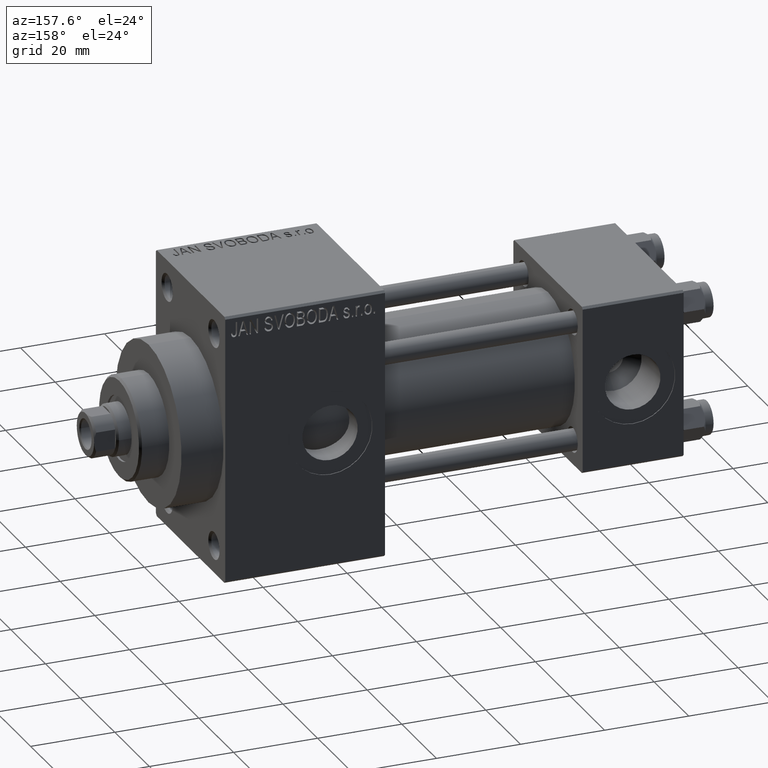
[diagram: clean part render]
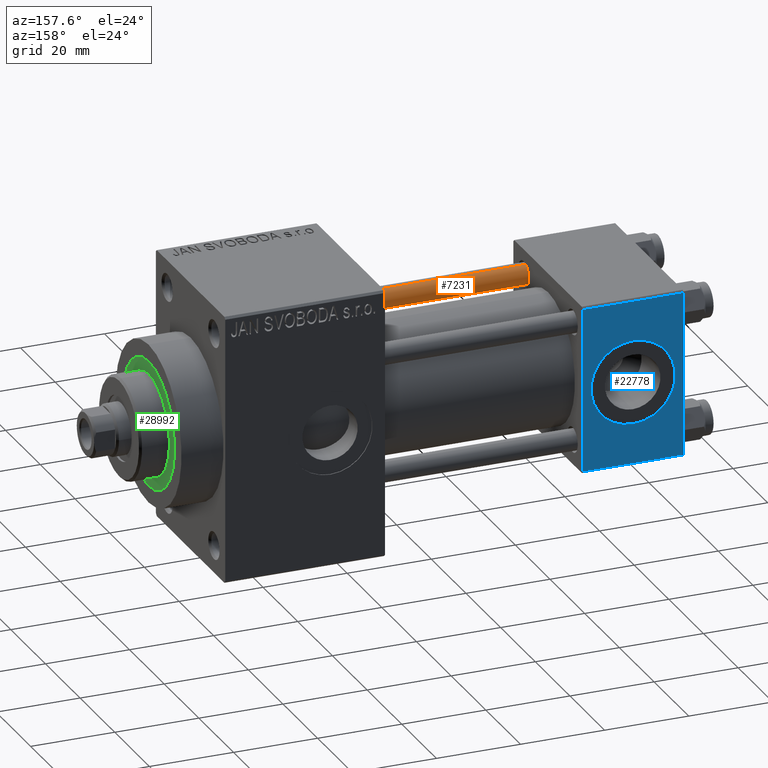
[diagram: same view with three faces highlighted in distinct colors, each labeled with its STEP entity id]
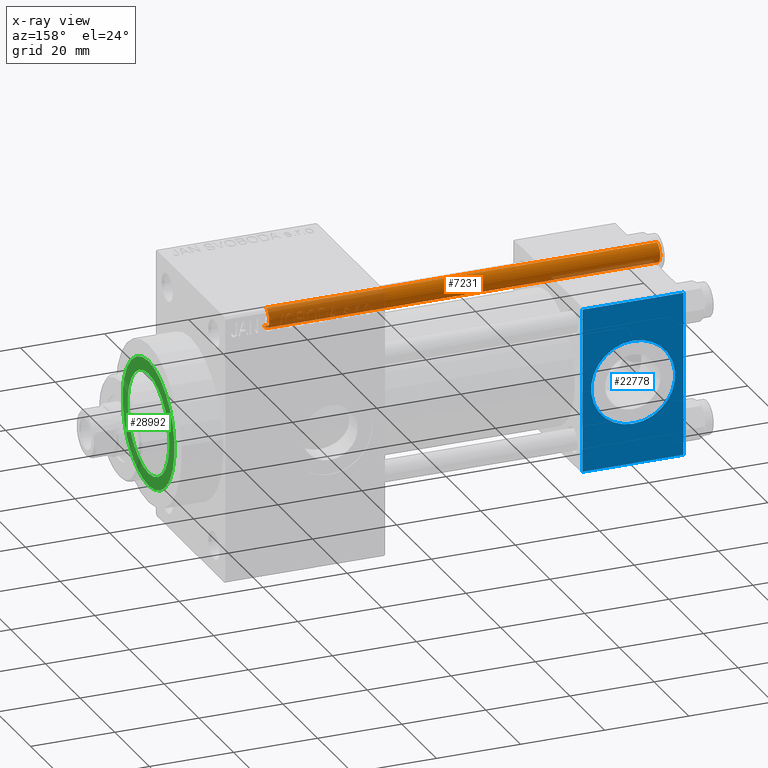
[diagram: x-ray of the same camera — body ghosted, the three highlighted faces saturated]
A machine part, auxiliary view with three faces highlighted in distinct colors.
The next image is the same camera in x-ray (body ghosted, the three faces saturated) — at least one of them is partly hidden behind the body in this view.
Their STEP definitions:

[orange] entity #7231 — the highlighted cylindrical surface (edge-blend (fillet) strip) has radius 2.5 mm, axis along (1, 0, 0).
#2433 = CARTESIAN_POINT ( 'NONE',  ( 2.500000000000000000, 3.061616997868383141E-16, 93.50000000000001421 ) ) ;
#4178 = ORIENTED_EDGE ( 'NONE', *, *, #36421, .T. ) ;
#4945 = CARTESIAN_POINT ( 'NONE',  ( -2.500000000000000000, 0.000000000000000000, 94.00000000000000000 ) ) ;
#5501 = EDGE_LOOP ( 'NONE', ( #19191, #19571, #4178, #46881 ) ) ;
#5672 = CARTESIAN_POINT ( 'NONE',  ( -2.500000000000000000, 0.000000000000000000, 93.50000000000001421 ) ) ;
#6122 = DIRECTION ( 'NONE',  ( 1.000000000000000000, 0.000000000000000000, 0.000000000000000000 ) ) ;
#6596 = CARTESIAN_POINT ( 'NONE',  ( 0.000000000000000000, 0.000000000000000000, 93.50000000000001421 ) ) ;
#6803 = DIRECTION ( 'NONE',  ( -0.000000000000000000, -0.000000000000000000, -1.000000000000000000 ) ) ;
#7231 = ADVANCED_FACE ( 'NONE', ( #17759 ), #32744, .T. ) ;
#9719 = CARTESIAN_POINT ( 'NONE',  ( 2.500000000000000000, 3.061616997868383141E-16, 0.5000000000000004441 ) ) ;
#11636 = EDGE_CURVE ( 'NONE', #37110, #43046, #36962, .T. ) ;
#13719 = DIRECTION ( 'NONE',  ( 1.000000000000000000, 0.000000000000000000, 0.000000000000000000 ) ) ;
#15228 = VERTEX_POINT ( 'NONE', #26004 ) ;
#17661 = VECTOR ( 'NONE', #33990, 1000.000000000000000 ) ;
#17759 = FACE_OUTER_BOUND ( 'NONE', #5501, .T. ) ;
#19191 = ORIENTED_EDGE ( 'NONE', *, *, #31910, .F. ) ;
#19571 = ORIENTED_EDGE ( 'NONE', *, *, #11636, .T. ) ;
#20023 = CIRCLE ( 'NONE', #42804, 2.500000000000000000 ) ;
#20089 = LINE ( 'NONE', #45330, #38166 ) ;
#21568 = DIRECTION ( 'NONE',  ( -1.000000000000000000, 0.000000000000000000, 0.000000000000000000 ) ) ;
#21589 = DIRECTION ( 'NONE',  ( 0.000000000000000000, 0.000000000000000000, -1.000000000000000000 ) ) ;
#22434 = AXIS2_PLACEMENT_3D ( 'NONE', #39177, #6803, #21568 ) ;
#24699 = CARTESIAN_POINT ( 'NONE',  ( 0.000000000000000000, 0.000000000000000000, 0.5000000000000004441 ) ) ;
#25123 = VERTEX_POINT ( 'NONE', #9719 ) ;
#26004 = CARTESIAN_POINT ( 'NONE',  ( -2.500000000000000000, 0.000000000000000000, 0.5000000000000004441 ) ) ;
#26333 = AXIS2_PLACEMENT_3D ( 'NONE', #6596, #21589, #13719 ) ;
#27232 = DIRECTION ( 'NONE',  ( -0.000000000000000000, -0.000000000000000000, -1.000000000000000000 ) ) ;
#31910 = EDGE_CURVE ( 'NONE', #37110, #25123, #20089, .T. ) ;
#32744 = CYLINDRICAL_SURFACE ( 'NONE', #22434, 2.500000000000000000 ) ;
#33823 = EDGE_CURVE ( 'NONE', #15228, #25123, #20023, .T. ) ;
#33990 = DIRECTION ( 'NONE',  ( -0.000000000000000000, -0.000000000000000000, -1.000000000000000000 ) ) ;
#36421 = EDGE_CURVE ( 'NONE', #43046, #15228, #37552, .T. ) ;
#36962 = CIRCLE ( 'NONE', #26333, 2.500000000000000000 ) ;
#37110 = VERTEX_POINT ( 'NONE', #2433 ) ;
#37552 = LINE ( 'NONE', #4945, #17661 ) ;
#38166 = VECTOR ( 'NONE', #27232, 1000.000000000000000 ) ;
#39177 = CARTESIAN_POINT ( 'NONE',  ( 0.000000000000000000, 0.000000000000000000, 94.00000000000000000 ) ) ;
#42804 = AXIS2_PLACEMENT_3D ( 'NONE', #24699, #46127, #6122 ) ;
#43046 = VERTEX_POINT ( 'NONE', #5672 ) ;
#45330 = CARTESIAN_POINT ( 'NONE',  ( 2.500000000000000000, 3.061616997868383141E-16, 94.00000000000000000 ) ) ;
#46127 = DIRECTION ( 'NONE',  ( -0.000000000000000000, -0.000000000000000000, 1.000000000000000000 ) ) ;
#46881 = ORIENTED_EDGE ( 'NONE', *, *, #33823, .T. ) ;

[blue] entity #22778 — the highlighted planar face has unit normal (0, 1, 0).
#699 = EDGE_LOOP ( 'NONE', ( #40546, #15740 ) ) ;
#2335 = AXIS2_PLACEMENT_3D ( 'NONE', #44460, #11831, #19208 ) ;
#3318 = VERTEX_POINT ( 'NONE', #7043 ) ;
#4105 = VERTEX_POINT ( 'NONE', #19949 ) ;
#4736 = DIRECTION ( 'NONE',  ( 0.000000000000000000, 0.000000000000000000, 1.000000000000000000 ) ) ;
#5646 = LINE ( 'NONE', #45181, #45061 ) ;
#7043 = CARTESIAN_POINT ( 'NONE',  ( 12.00000000000000178, 20.00000000000000000, -10.00000000000000000 ) ) ;
#7537 = FACE_OUTER_BOUND ( 'NONE', #24413, .T. ) ;
#8961 = CIRCLE ( 'NONE', #37089, 10.00000000000000000 ) ;
#9086 = LINE ( 'NONE', #34096, #30159 ) ;
#9667 = LINE ( 'NONE', #17041, #28632 ) ;
#11090 = VECTOR ( 'NONE', #26299, 1000.000000000000000 ) ;
#11300 = LINE ( 'NONE', #18682, #11090 ) ;
#11831 = DIRECTION ( 'NONE',  ( 0.000000000000000000, 1.000000000000000000, 0.000000000000000000 ) ) ;
#12886 = DIRECTION ( 'NONE',  ( -1.000000000000000000, 0.000000000000000000, 0.000000000000000000 ) ) ;
#14866 = EDGE_CURVE ( 'NONE', #15635, #45955, #11300, .T. ) ;
#15635 = VERTEX_POINT ( 'NONE', #39229 ) ;
#15740 = ORIENTED_EDGE ( 'NONE', *, *, #18864, .F. ) ;
#16245 = EDGE_CURVE ( 'NONE', #26884, #23269, #9086, .T. ) ;
#16768 = ORIENTED_EDGE ( 'NONE', *, *, #16928, .T. ) ;
#16928 = EDGE_CURVE ( 'NONE', #45955, #26884, #9667, .T. ) ;
#17041 = CARTESIAN_POINT ( 'NONE',  ( 24.00000000000000000, 20.00000000000000000, 20.00000000000000000 ) ) ;
#18682 = CARTESIAN_POINT ( 'NONE',  ( 24.00000000000000000, 20.00000000000000000, 19.49999999999999289 ) ) ;
#18864 = EDGE_CURVE ( 'NONE', #3318, #4105, #8961, .T. ) ;
#19208 = DIRECTION ( 'NONE',  ( 0.000000000000000000, 0.000000000000000000, 1.000000000000000000 ) ) ;
#19727 = DIRECTION ( 'NONE',  ( 0.000000000000000000, 1.000000000000000000, 0.000000000000000000 ) ) ;
#19949 = CARTESIAN_POINT ( 'NONE',  ( 12.00000000000000000, 20.00000000000000000, 10.00000000000000000 ) ) ;
#20414 = DIRECTION ( 'NONE',  ( 0.000000000000000000, 0.000000000000000000, -1.000000000000000000 ) ) ;
#21359 = PLANE ( 'NONE',  #28867 ) ;
#22631 = CARTESIAN_POINT ( 'NONE',  ( 24.00000000000000000, 20.00000000000000000, -19.50000000000002132 ) ) ;
#22778 = ADVANCED_FACE ( 'NONE', ( #39679, #7537 ), #21359, .T. ) ;
#23269 = VERTEX_POINT ( 'NONE', #31952 ) ;
#23303 = CARTESIAN_POINT ( 'NONE',  ( 12.00000000000000000, 20.00000000000000000, 0.000000000000000000 ) ) ;
#24413 = EDGE_LOOP ( 'NONE', ( #16768, #26020, #44591, #28804 ) ) ;
#25232 = EDGE_CURVE ( 'NONE', #4105, #3318, #25879, .T. ) ;
#25879 = CIRCLE ( 'NONE', #2335, 10.00000000000000000 ) ;
#26020 = ORIENTED_EDGE ( 'NONE', *, *, #16245, .T. ) ;
#26299 = DIRECTION ( 'NONE',  ( 1.000000000000000000, 0.000000000000000000, 0.000000000000000000 ) ) ;
#26884 = VERTEX_POINT ( 'NONE', #22631 ) ;
#28632 = VECTOR ( 'NONE', #46322, 1000.000000000000000 ) ;
#28804 = ORIENTED_EDGE ( 'NONE', *, *, #14866, .T. ) ;
#28867 = AXIS2_PLACEMENT_3D ( 'NONE', #36119, #35879, #35640 ) ;
#30159 = VECTOR ( 'NONE', #12886, 1000.000000000000000 ) ;
#31952 = CARTESIAN_POINT ( 'NONE',  ( 0.000000000000000000, 20.00000000000000000, -19.50000000000002132 ) ) ;
#34096 = CARTESIAN_POINT ( 'NONE',  ( 24.00000000000000000, 20.00000000000000000, -19.50000000000002132 ) ) ;
#35640 = DIRECTION ( 'NONE',  ( 0.000000000000000000, -0.000000000000000000, 1.000000000000000000 ) ) ;
#35879 = DIRECTION ( 'NONE',  ( -0.000000000000000000, 1.000000000000000000, 0.000000000000000000 ) ) ;
#36119 = CARTESIAN_POINT ( 'NONE',  ( 24.00000000000000000, 20.00000000000000000, 20.00000000000000000 ) ) ;
#37089 = AXIS2_PLACEMENT_3D ( 'NONE', #23303, #19727, #4736 ) ;
#37349 = EDGE_CURVE ( 'NONE', #15635, #23269, #5646, .T. ) ;
#39229 = CARTESIAN_POINT ( 'NONE',  ( 0.000000000000000000, 20.00000000000000000, 19.49999999999999289 ) ) ;
#39679 = FACE_BOUND ( 'NONE', #699, .T. ) ;
#40546 = ORIENTED_EDGE ( 'NONE', *, *, #25232, .F. ) ;
#42409 = CARTESIAN_POINT ( 'NONE',  ( 24.00000000000000000, 20.00000000000000000, 19.49999999999999289 ) ) ;
#44460 = CARTESIAN_POINT ( 'NONE',  ( 12.00000000000000000, 20.00000000000000000, 0.000000000000000000 ) ) ;
#44591 = ORIENTED_EDGE ( 'NONE', *, *, #37349, .F. ) ;
#45061 = VECTOR ( 'NONE', #20414, 1000.000000000000000 ) ;
#45181 = CARTESIAN_POINT ( 'NONE',  ( 0.000000000000000000, 20.00000000000000000, 20.00000000000000000 ) ) ;
#45955 = VERTEX_POINT ( 'NONE', #42409 ) ;
#46322 = DIRECTION ( 'NONE',  ( 0.000000000000000000, 0.000000000000000000, -1.000000000000000000 ) ) ;

[green] entity #28992 — the highlighted planar face has unit normal (1, -0, -0).
#2613 = CARTESIAN_POINT ( 'NONE',  ( 0.000000000000000000, 0.000000000000000000, 43.25999999999999801 ) ) ;
#3731 = CIRCLE ( 'NONE', #9058, 15.00000000000000000 ) ;
#3752 = EDGE_CURVE ( 'NONE', #24614, #6602, #5569, .T. ) ;
#4078 = ORIENTED_EDGE ( 'NONE', *, *, #21723, .T. ) ;
#5569 = CIRCLE ( 'NONE', #13168, 12.00000000000000178 ) ;
#5723 = FACE_OUTER_BOUND ( 'NONE', #46856, .T. ) ;
#6181 = FACE_BOUND ( 'NONE', #38848, .T. ) ;
#6602 = VERTEX_POINT ( 'NONE', #28852 ) ;
#6769 = VERTEX_POINT ( 'NONE', #43995 ) ;
#8283 = DIRECTION ( 'NONE',  ( 1.000000000000000000, 0.000000000000000000, 0.000000000000000000 ) ) ;
#8406 = AXIS2_PLACEMENT_3D ( 'NONE', #2613, #31646, #36167 ) ;
#8516 = CARTESIAN_POINT ( 'NONE',  ( 0.000000000000000000, 0.000000000000000000, 43.25999999999999801 ) ) ;
#9058 = AXIS2_PLACEMENT_3D ( 'NONE', #8516, #23048, #8283 ) ;
#9281 = DIRECTION ( 'NONE',  ( 0.000000000000000000, 0.000000000000000000, 1.000000000000000000 ) ) ;
#9745 = DIRECTION ( 'NONE',  ( 1.000000000000000000, 0.000000000000000000, 0.000000000000000000 ) ) ;
#10288 = ORIENTED_EDGE ( 'NONE', *, *, #29395, .T. ) ;
#13168 = AXIS2_PLACEMENT_3D ( 'NONE', #24052, #9281, #9745 ) ;
#16901 = PLANE ( 'NONE',  #41847 ) ;
#17438 = DIRECTION ( 'NONE',  ( 0.000000000000000000, 0.000000000000000000, 1.000000000000000000 ) ) ;
#21723 = EDGE_CURVE ( 'NONE', #30918, #6769, #3731, .T. ) ;
#22898 = ORIENTED_EDGE ( 'NONE', *, *, #3752, .F. ) ;
#23048 = DIRECTION ( 'NONE',  ( 0.000000000000000000, 0.000000000000000000, 1.000000000000000000 ) ) ;
#23236 = EDGE_CURVE ( 'NONE', #6602, #24614, #24285, .T. ) ;
#24052 = CARTESIAN_POINT ( 'NONE',  ( 0.000000000000000000, 0.000000000000000000, 43.25999999999999801 ) ) ;
#24285 = CIRCLE ( 'NONE', #29615, 12.00000000000000178 ) ;
#24518 = DIRECTION ( 'NONE',  ( 1.000000000000000000, 0.000000000000000000, -0.000000000000000000 ) ) ;
#24614 = VERTEX_POINT ( 'NONE', #26245 ) ;
#26245 = CARTESIAN_POINT ( 'NONE',  ( -12.00000000000000178, 0.000000000000000000, 43.25999999999999801 ) ) ;
#28852 = CARTESIAN_POINT ( 'NONE',  ( 12.00000000000000178, 1.469576158976824144E-15, 43.25999999999999801 ) ) ;
#28992 = ADVANCED_FACE ( 'NONE', ( #6181, #5723 ), #16901, .T. ) ;
#29395 = EDGE_CURVE ( 'NONE', #6769, #30918, #44916, .T. ) ;
#29615 = AXIS2_PLACEMENT_3D ( 'NONE', #43389, #17438, #39574 ) ;
#30918 = VERTEX_POINT ( 'NONE', #43683 ) ;
#31646 = DIRECTION ( 'NONE',  ( 0.000000000000000000, 0.000000000000000000, 1.000000000000000000 ) ) ;
#35234 = CARTESIAN_POINT ( 'NONE',  ( 0.000000000000000000, 0.000000000000000000, 43.25999999999999801 ) ) ;
#36167 = DIRECTION ( 'NONE',  ( 1.000000000000000000, 0.000000000000000000, 0.000000000000000000 ) ) ;
#38806 = DIRECTION ( 'NONE',  ( 0.000000000000000000, 0.000000000000000000, 1.000000000000000000 ) ) ;
#38848 = EDGE_LOOP ( 'NONE', ( #22898, #40632 ) ) ;
#39574 = DIRECTION ( 'NONE',  ( 1.000000000000000000, 0.000000000000000000, 0.000000000000000000 ) ) ;
#40632 = ORIENTED_EDGE ( 'NONE', *, *, #23236, .F. ) ;
#41847 = AXIS2_PLACEMENT_3D ( 'NONE', #35234, #38806, #24518 ) ;
#43389 = CARTESIAN_POINT ( 'NONE',  ( 0.000000000000000000, 0.000000000000000000, 43.25999999999999801 ) ) ;
#43683 = CARTESIAN_POINT ( 'NONE',  ( 15.00000000000000000, 1.836970198721029589E-15, 43.25999999999999801 ) ) ;
#43995 = CARTESIAN_POINT ( 'NONE',  ( -15.00000000000000000, 0.000000000000000000, 43.25999999999999801 ) ) ;
#44916 = CIRCLE ( 'NONE', #8406, 15.00000000000000000 ) ;
#46856 = EDGE_LOOP ( 'NONE', ( #10288, #4078 ) ) ;